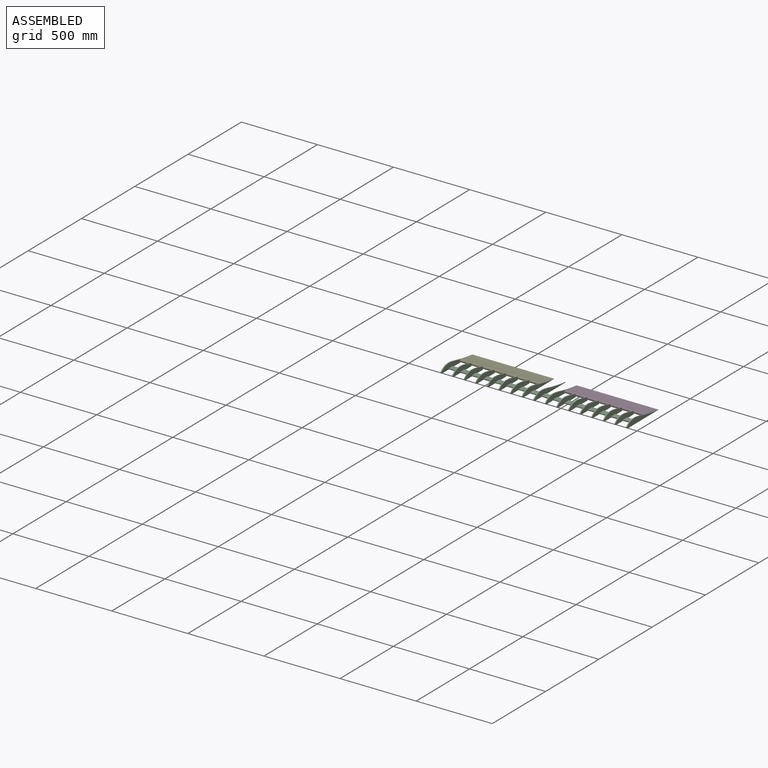
[diagram: assembled view]
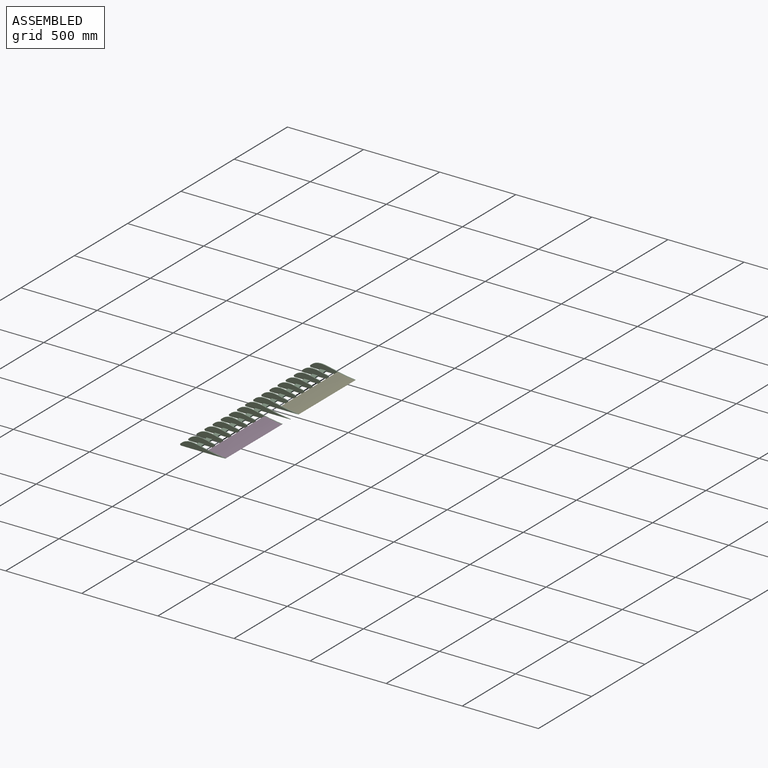
[diagram: assembled view, second angle]
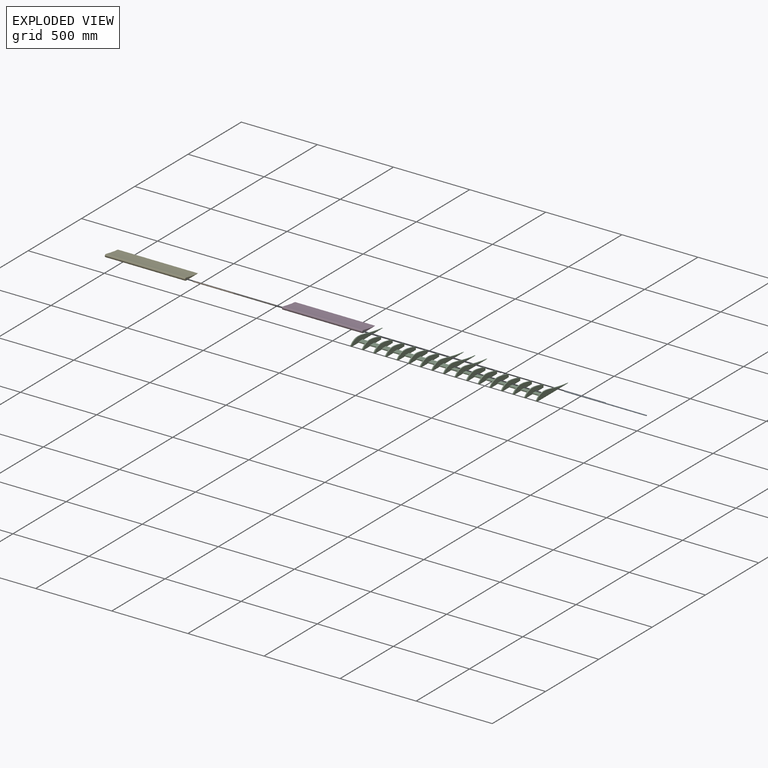
[diagram: exploded view]
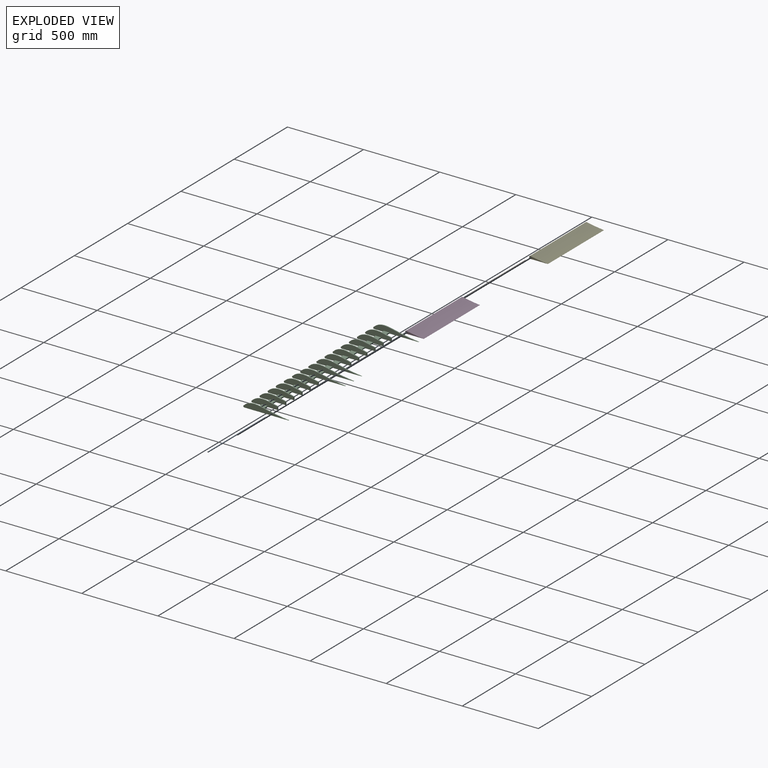
[diagram: exploded view, second angle]
ASSEMBLY  parts=5 mates=4
PART A: 3 faces, bbox 6.4x6.4x539.8 mm
  f0: cylinder r=3.17mm len=539.75mm, axis (0,0,-1), area 10767.5mm2, adj f1,f2
  f1: plane 6.35x6.35mm, normal (0,0,1), area 31.7mm2, adj f0
  f2: plane 6.35x6.35mm, normal (0,0,-1), area 31.7mm2, adj f0
PART B: same geometry as A
PART C: 162 faces, bbox 1225.6x297.4x38.8 mm
  f0: plane 297.41x38.78mm, normal (1,0,0), area 6033.5mm2, adj f2,f3,f4,f5,f15,f16,f17
  f1: plane 297.41x38.78mm, normal (-1,0,0), area 6033.5mm2, adj f2,f3,f4,f5,f6,f7,f8
  f2: extruded ~228.6x38.1mm, area 1473.5mm2, adj f0,f1,f3,f4
  f3: extruded ~66.99x27.31mm, area 472.1mm2, adj f0,f1,f2,f5
  f4: plane 1225.55x291.06mm, normal (0,0,-1), area 64426.3mm2, adj f0,f1,f2,f5,f6,f7,f9,f10
  f5: cylinder r=6.35mm len=10.79mm, axis (-1,0,0), area 94.6mm2, adj f0,f1,f3,f4
  f6: plane 69.85x6.35mm, normal (0,-1,0), area 443.5mm2, adj f1,f4,f8,f87
  f7: plane 69.85x6.35mm, normal (0,1,0), area 443.5mm2, adj f1,f4,f8,f87
  f8: plane 69.85x38.1mm, normal (0,0,1), area 2661.3mm2, adj f1,f6,f7,f87
  f9: plane 297.41x38.78mm, normal (1,0,0), area 6001.9mm2, adj f4,f11,f12,f13,f14,f25,f26,f27
  f10: plane 297.41x38.78mm, normal (-1,0,0), area 6001.9mm2, adj f4,f11,f12,f13,f14,f15,f16,f17
  f11: extruded ~228.6x38.1mm, area 1473.5mm2, adj f4,f9,f10,f12
  f12: extruded ~66.99x27.31mm, area 472.1mm2, adj f9,f10,f11,f13
  f13: cylinder r=6.35mm len=10.79mm, axis (-1,0,0), area 94.6mm2, adj f4,f9,f10,f12
  f14: cylinder r=3.17mm len=6.35mm, axis (-1,0,0), area 126.7mm2, adj f9,f10
  f15: plane 69.85x6.35mm, normal (0,-1,0), area 443.5mm2, adj f0,f4,f10,f17
  f16: plane 69.85x6.35mm, normal (0,1,0), area 443.5mm2, adj f0,f4,f10,f17
  f17: plane 69.85x38.1mm, normal (0,0,1), area 2661.3mm2, adj f0,f10,f15,f16
  f18: extruded ~98.97x17.23mm, area 639.3mm2, adj f19,f20,f21,f24
  f19: plane 171.77x38.78mm, normal (1,0,0), area 4928.5mm2, adj f4,f18,f21,f22,f23,f24,f35,f36
  f20: plane 171.77x38.78mm, normal (-1,0,0), area 4928.5mm2, adj f4,f18,f21,f22,f23,f24,f25,f26
  f21: extruded ~66.99x27.31mm, area 472.1mm2, adj f18,f19,f20,f22
  f22: cylinder r=6.35mm len=10.79mm, axis (-1,0,0), area 94.6mm2, adj f4,f19,f20,f21
  f23: plane 15.92x6.35mm, normal (0,1,0), area 101.1mm2, adj f4,f19,f20,f24
  f24: cylinder r=5.08mm len=6.35mm, axis (-1,0,0), area 43.7mm2, adj f18,f19,f20,f23
  f25: plane 69.85x6.35mm, normal (0,-1,0), area 443.5mm2, adj f4,f9,f20,f27
  f26: plane 69.85x6.35mm, normal (0,1,0), area 443.5mm2, adj f4,f9,f20,f27
  f27: plane 69.85x38.1mm, normal (0,0,1), area 2661.3mm2, adj f9,f20,f25,f26
  f28: extruded ~98.97x17.23mm, area 639.3mm2, adj f29,f30,f31,f34
  f29: plane 171.77x38.78mm, normal (1,0,0), area 4928.5mm2, adj f4,f28,f31,f32,f33,f34,f45,f46
  f30: plane 171.77x38.78mm, normal (-1,0,0), area 4928.5mm2, adj f4,f28,f31,f32,f33,f34,f35,f36
  f31: extruded ~66.99x27.31mm, area 472.1mm2, adj f28,f29,f30,f32
  f32: cylinder r=6.35mm len=10.79mm, axis (-1,0,0), area 94.6mm2, adj f4,f29,f30,f31
  f33: plane 15.92x6.35mm, normal (0,1,0), area 101.1mm2, adj f4,f29,f30,f34
  f34: cylinder r=5.08mm len=6.35mm, axis (-1,0,0), area 43.7mm2, adj f28,f29,f30,f33
  f35: plane 69.85x6.35mm, normal (0,-1,0), area 443.5mm2, adj f4,f19,f30,f37
  f36: plane 69.85x6.35mm, normal (0,1,0), area 443.5mm2, adj f4,f19,f30,f37
  f37: plane 69.85x38.1mm, normal (0,0,1), area 2661.3mm2, adj f19,f30,f35,f36
  f38: extruded ~98.97x17.23mm, area 639.3mm2, adj f39,f40,f41,f44
  f39: plane 171.77x38.78mm, normal (1,0,0), area 4928.5mm2, adj f4,f38,f41,f42,f43,f44,f55,f56
  f40: plane 171.77x38.78mm, normal (-1,0,0), area 4928.5mm2, adj f4,f38,f41,f42,f43,f44,f45,f46
  f41: extruded ~66.99x27.31mm, area 472.1mm2, adj f38,f39,f40,f42
  f42: cylinder r=6.35mm len=10.79mm, axis (-1,0,0), area 94.6mm2, adj f4,f39,f40,f41
  f43: plane 15.92x6.35mm, normal (0,1,0), area 101.1mm2, adj f4,f39,f40,f44
  f44: cylinder r=5.08mm len=6.35mm, axis (-1,0,0), area 43.7mm2, adj f38,f39,f40,f43
  f45: plane 69.85x6.35mm, normal (0,-1,0), area 443.5mm2, adj f4,f29,f40,f47
  f46: plane 69.85x6.35mm, normal (0,1,0), area 443.5mm2, adj f4,f29,f40,f47
  f47: plane 69.85x38.1mm, normal (0,0,1), area 2661.3mm2, adj f29,f40,f45,f46
  f48: extruded ~98.97x17.23mm, area 639.3mm2, adj f49,f50,f51,f54
  f49: plane 171.77x38.78mm, normal (1,0,0), area 4928.5mm2, adj f4,f48,f51,f52,f53,f54,f65,f66
  f50: plane 171.77x38.78mm, normal (-1,0,0), area 4928.5mm2, adj f4,f48,f51,f52,f53,f54,f55,f56
  f51: extruded ~66.99x27.31mm, area 472.1mm2, adj f48,f49,f50,f52
  f52: cylinder r=6.35mm len=10.79mm, axis (-1,0,0), area 94.6mm2, adj f4,f49,f50,f51
  f53: plane 15.92x6.35mm, normal (0,1,0), area 101.1mm2, adj f4,f49,f50,f54
  f54: cylinder r=5.08mm len=6.35mm, axis (-1,0,0), area 43.7mm2, adj f48,f49,f50,f53
  f55: plane 69.85x6.35mm, normal (0,-1,0), area 443.5mm2, adj f4,f39,f50,f57
  f56: plane 69.85x6.35mm, normal (0,1,0), area 443.5mm2, adj f4,f39,f50,f57
  f57: plane 69.85x38.1mm, normal (0,0,1), area 2661.3mm2, adj f39,f50,f55,f56
  f58: extruded ~98.97x17.23mm, area 639.3mm2, adj f59,f60,f61,f64
  f59: plane 171.77x38.78mm, normal (1,0,0), area 4928.5mm2, adj f4,f58,f61,f62,f63,f64,f75,f76
  f60: plane 171.77x38.78mm, normal (-1,0,0), area 4928.5mm2, adj f4,f58,f61,f62,f63,f64,f65,f66
  f61: extruded ~66.99x27.31mm, area 472.1mm2, adj f58,f59,f60,f62
  f62: cylinder r=6.35mm len=10.79mm, axis (-1,0,0), area 94.6mm2, adj f4,f59,f60,f61
  f63: plane 15.92x6.35mm, normal (0,1,0), area 101.1mm2, adj f4,f59,f60,f64
  f64: cylinder r=5.08mm len=6.35mm, axis (-1,0,0), area 43.7mm2, adj f58,f59,f60,f63
  f65: plane 69.85x6.35mm, normal (0,-1,0), area 443.5mm2, adj f4,f49,f60,f67
  f66: plane 69.85x6.35mm, normal (0,1,0), area 443.5mm2, adj f4,f49,f60,f67
  f67: plane 69.85x38.1mm, normal (0,0,1), area 2661.3mm2, adj f49,f60,f65,f66
  f68: extruded ~98.97x17.23mm, area 639.3mm2, adj f69,f70,f71,f74
  f69: plane 171.77x38.78mm, normal (1,0,0), area 4928.5mm2, adj f4,f68,f71,f72,f73,f74,f84,f85
  f70: plane 171.77x38.78mm, normal (-1,0,0), area 4928.5mm2, adj f4,f68,f71,f72,f73,f74,f75,f76
  f71: extruded ~66.99x27.31mm, area 472.1mm2, adj f68,f69,f70,f72
  f72: cylinder r=6.35mm len=10.79mm, axis (-1,0,0), area 94.6mm2, adj f4,f69,f70,f71
  f73: plane 15.92x6.35mm, normal (0,1,0), area 101.1mm2, adj f4,f69,f70,f74
  f74: cylinder r=5.08mm len=6.35mm, axis (-1,0,0), area 43.7mm2, adj f68,f69,f70,f73
  f75: plane 69.85x6.35mm, normal (0,-1,0), area 443.5mm2, adj f4,f59,f70,f77
  f76: plane 69.85x6.35mm, normal (0,1,0), area 443.5mm2, adj f4,f59,f70,f77
  f77: plane 69.85x38.1mm, normal (0,0,1), area 2661.3mm2, adj f59,f70,f75,f76
  f78: plane 297.41x38.78mm, normal (1,0,0), area 6243.8mm2, adj f4,f80,f81,f82,f83
  f79: plane 297.41x38.78mm, normal (-1,0,0), area 6001.9mm2, adj f4,f80,f81,f82,f83,f84,f85,f86
  f80: extruded ~228.6x38.1mm, area 1473.5mm2, adj f4,f78,f79,f81
  f81: extruded ~66.99x27.31mm, area 472.1mm2, adj f78,f79,f80,f82
  f82: cylinder r=6.35mm len=10.79mm, axis (-1,0,0), area 94.6mm2, adj f4,f78,f79,f81
  f83: cylinder r=3.17mm len=6.35mm, axis (-1,0,0), area 126.7mm2, adj f78,f79
  f84: plane 69.85x6.35mm, normal (0,-1,0), area 443.5mm2, adj f4,f69,f79,f86
  f85: plane 69.85x6.35mm, normal (0,1,0), area 443.5mm2, adj f4,f69,f79,f86
  f86: plane 69.85x38.1mm, normal (0,0,1), area 2661.3mm2, adj f69,f79,f84,f85
  f87: plane 297.41x38.78mm, normal (1,0,0), area 6001.9mm2, adj f4,f6,f7,f8,f89,f90,f91,f92
  f88: plane 297.41x38.78mm, normal (-1,0,0), area 6001.9mm2, adj f4,f89,f90,f91,f92,f93,f94,f95
  f89: extruded ~228.6x38.1mm, area 1473.5mm2, adj f4,f87,f88,f90
  f90: extruded ~66.99x27.31mm, area 472.1mm2, adj f87,f88,f89,f91
  f91: cylinder r=6.35mm len=10.79mm, axis (-1,0,0), area 94.6mm2, adj f4,f87,f88,f90
  f92: cylinder r=3.17mm len=6.35mm, axis (-1,0,0), area 126.7mm2, adj f87,f88
  f93: plane 69.85x6.35mm, normal (0,-1,0), area 443.5mm2, adj f4,f88,f95,f97
  f94: plane 69.85x6.35mm, normal (0,1,0), area 443.5mm2, adj f4,f88,f95,f97
  f95: plane 69.85x38.1mm, normal (0,0,1), area 2661.3mm2, adj f88,f93,f94,f97
  f96: extruded ~98.97x17.23mm, area 639.3mm2, adj f97,f98,f99,f102
  f97: plane 171.77x38.78mm, normal (1,0,0), area 4928.5mm2, adj f4,f93,f94,f95,f96,f99,f100,f101
  f98: plane 171.77x38.78mm, normal (-1,0,0), area 4928.5mm2, adj f4,f96,f99,f100,f101,f102,f103,f104
  f99: extruded ~66.99x27.31mm, area 472.1mm2, adj f96,f97,f98,f100
  f100: cylinder r=6.35mm len=10.79mm, axis (-1,0,0), area 94.6mm2, adj f4,f97,f98,f99
  f101: plane 15.92x6.35mm, normal (0,1,0), area 101.1mm2, adj f4,f97,f98,f102
  f102: cylinder r=5.08mm len=6.35mm, axis (-1,0,0), area 43.7mm2, adj f96,f97,f98,f101
  f103: plane 69.85x6.35mm, normal (0,-1,0), area 443.5mm2, adj f4,f98,f105,f107
  f104: plane 69.85x6.35mm, normal (0,1,0), area 443.5mm2, adj f4,f98,f105,f107
  f105: plane 69.85x38.1mm, normal (0,0,1), area 2661.3mm2, adj f98,f103,f104,f107
  f106: extruded ~98.97x17.23mm, area 639.3mm2, adj f107,f108,f109,f112
  f107: plane 171.77x38.78mm, normal (1,0,0), area 4928.5mm2, adj f4,f103,f104,f105,f106,f109,f110,f111
  f108: plane 171.77x38.78mm, normal (-1,0,0), area 4928.5mm2, adj f4,f106,f109,f110,f111,f112,f113,f114
  f109: extruded ~66.99x27.31mm, area 472.1mm2, adj f106,f107,f108,f110
  f110: cylinder r=6.35mm len=10.79mm, axis (-1,0,0), area 94.6mm2, adj f4,f107,f108,f109
  f111: plane 15.92x6.35mm, normal (0,1,0), area 101.1mm2, adj f4,f107,f108,f112
  f112: cylinder r=5.08mm len=6.35mm, axis (-1,0,0), area 43.7mm2, adj f106,f107,f108,f111
  f113: plane 69.85x6.35mm, normal (0,-1,0), area 443.5mm2, adj f4,f108,f115,f117
  f114: plane 69.85x6.35mm, normal (0,1,0), area 443.5mm2, adj f4,f108,f115,f117
  f115: plane 69.85x38.1mm, normal (0,0,1), area 2661.3mm2, adj f108,f113,f114,f117
  f116: extruded ~98.97x17.23mm, area 639.3mm2, adj f117,f118,f119,f122
  f117: plane 171.77x38.78mm, normal (1,0,0), area 4928.5mm2, adj f4,f113,f114,f115,f116,f119,f120,f121
  f118: plane 171.77x38.78mm, normal (-1,0,0), area 4928.5mm2, adj f4,f116,f119,f120,f121,f122,f123,f124
  f119: extruded ~66.99x27.31mm, area 472.1mm2, adj f116,f117,f118,f120
  f120: cylinder r=6.35mm len=10.79mm, axis (-1,0,0), area 94.6mm2, adj f4,f117,f118,f119
  f121: plane 15.92x6.35mm, normal (0,1,0), area 101.1mm2, adj f4,f117,f118,f122
  f122: cylinder r=5.08mm len=6.35mm, axis (-1,0,0), area 43.7mm2, adj f116,f117,f118,f121
  f123: plane 69.85x6.35mm, normal (0,-1,0), area 443.5mm2, adj f4,f118,f125,f127
  f124: plane 69.85x6.35mm, normal (0,1,0), area 443.5mm2, adj f4,f118,f125,f127
  f125: plane 69.85x38.1mm, normal (0,0,1), area 2661.3mm2, adj f118,f123,f124,f127
  f126: extruded ~98.97x17.23mm, area 639.3mm2, adj f127,f128,f129,f132
  f127: plane 171.77x38.78mm, normal (1,0,0), area 4928.5mm2, adj f4,f123,f124,f125,f126,f129,f130,f131
  f128: plane 171.77x38.78mm, normal (-1,0,0), area 4928.5mm2, adj f4,f126,f129,f130,f131,f132,f133,f134
  f129: extruded ~66.99x27.31mm, area 472.1mm2, adj f126,f127,f128,f130
  f130: cylinder r=6.35mm len=10.79mm, axis (-1,0,0), area 94.6mm2, adj f4,f127,f128,f129
  f131: plane 15.92x6.35mm, normal (0,1,0), area 101.1mm2, adj f4,f127,f128,f132
  f132: cylinder r=5.08mm len=6.35mm, axis (-1,0,0), area 43.7mm2, adj f126,f127,f128,f131
  f133: plane 69.85x6.35mm, normal (0,-1,0), area 443.5mm2, adj f4,f128,f135,f137
  f134: plane 69.85x6.35mm, normal (0,1,0), area 443.5mm2, adj f4,f128,f135,f137
  f135: plane 69.85x38.1mm, normal (0,0,1), area 2661.3mm2, adj f128,f133,f134,f137
  f136: extruded ~98.97x17.23mm, area 639.3mm2, adj f137,f138,f139,f142
  f137: plane 171.77x38.78mm, normal (1,0,0), area 4928.5mm2, adj f4,f133,f134,f135,f136,f139,f140,f141
  f138: plane 171.77x38.78mm, normal (-1,0,0), area 4928.5mm2, adj f4,f136,f139,f140,f141,f142,f143,f144
  f139: extruded ~66.99x27.31mm, area 472.1mm2, adj f136,f137,f138,f140
  f140: cylinder r=6.35mm len=10.79mm, axis (-1,0,0), area 94.6mm2, adj f4,f137,f138,f139
  f141: plane 15.92x6.35mm, normal (0,1,0), area 101.1mm2, adj f4,f137,f138,f142
  f142: cylinder r=5.08mm len=6.35mm, axis (-1,0,0), area 43.7mm2, adj f136,f137,f138,f141
  f143: plane 69.85x6.35mm, normal (0,-1,0), area 443.5mm2, adj f4,f138,f145,f148
  f144: plane 69.85x6.35mm, normal (0,1,0), area 443.5mm2, adj f4,f138,f145,f148
  f145: plane 69.85x38.1mm, normal (0,0,1), area 2661.3mm2, adj f138,f143,f144,f148
  f146: plane 171.77x38.78mm, normal (-1,0,0), area 4928.5mm2, adj f4,f147,f149,f150,f151,f152,f153,f154
  f147: extruded ~98.97x17.23mm, area 639.3mm2, adj f146,f148,f149,f152
  f148: plane 171.77x38.78mm, normal (1,0,0), area 4928.5mm2, adj f4,f143,f144,f145,f147,f149,f150,f151
  f149: extruded ~66.99x27.31mm, area 472.1mm2, adj f146,f147,f148,f150
  f150: cylinder r=6.35mm len=10.79mm, axis (-1,0,0), area 94.6mm2, adj f4,f146,f148,f149
  f151: plane 15.92x6.35mm, normal (0,1,0), area 101.1mm2, adj f4,f146,f148,f152
  f152: cylinder r=5.08mm len=6.35mm, axis (-1,0,0), area 43.7mm2, adj f146,f147,f148,f151
  f153: plane 69.85x6.35mm, normal (0,-1,0), area 443.5mm2, adj f4,f146,f155,f156
  f154: plane 69.85x6.35mm, normal (0,1,0), area 443.5mm2, adj f4,f146,f155,f156
  f155: plane 69.85x38.1mm, normal (0,0,1), area 2661.3mm2, adj f146,f153,f154,f156
  f156: plane 297.41x38.78mm, normal (1,0,0), area 6001.9mm2, adj f4,f153,f154,f155,f158,f159,f160,f161
  f157: plane 297.41x38.78mm, normal (-1,0,0), area 6243.8mm2, adj f4,f158,f159,f160,f161
  f158: extruded ~228.6x38.1mm, area 1473.5mm2, adj f4,f156,f157,f159
  f159: extruded ~66.99x27.31mm, area 472.1mm2, adj f156,f157,f158,f160
  f160: cylinder r=6.35mm len=10.79mm, axis (-1,0,0), area 94.6mm2, adj f4,f156,f157,f159
  f161: cylinder r=3.17mm len=6.35mm, axis (-1,0,0), area 126.7mm2, adj f156,f157
PART D: 6 faces, bbox 527.1x123.1x17.6 mm
  f0: cylinder r=8.8mm len=527.05mm, axis (-1,0,0), area 14571.9mm2, adj f1,f2,f3,f4
  f1: extruded ~527.05x114.3mm, area 60980.1mm2, adj f0,f2,f3,f4
  f2: plane 527.05x114.3mm, normal (0,0,-1), area 60241.8mm2, adj f0,f1,f3,f4
  f3: plane 123.1x17.6mm, normal (1,0,0), area 978.6mm2, adj f0,f1,f2,f5
  f4: plane 123.1x17.6mm, normal (-1,0,0), area 978.6mm2, adj f0,f1,f2,f5
  f5: cylinder r=3.17mm len=527.05mm, axis (1,0,0), area 10514.2mm2, adj f3,f4
PART E: same geometry as D
PLACE A rot(axis=(0,1,0),90deg) t=(76.2,210.19,-4.98)mm
PLACE B rot(axis=(0,1,0),90deg) t=(-609.6,210.19,-4.98)mm
PLACE C t=(0,19.69,-13.78)mm
PLACE D rot(axis=(0,0,1),180deg) t=(608.41,197.06,-13.78)mm
PLACE E rot(axis=(0,0,1),180deg) t=(-76.2,197.06,-13.78)mm
MATE slider B.f0 <-> C.f14  axis (1,0,0) through (-69.85,210.19,-4.98)mm
MATE cylindrical D.f0 <-> A.f0  axis (1,0,0) through (344.89,210.19,-4.98)mm
MATE cylindrical E.f0 <-> B.f0  axis (1,0,0) through (-339.73,210.19,-4.98)mm
MATE cylindrical A.f0 <-> C.f14  axis (1,0,0) through (615.95,210.19,-4.98)mm
